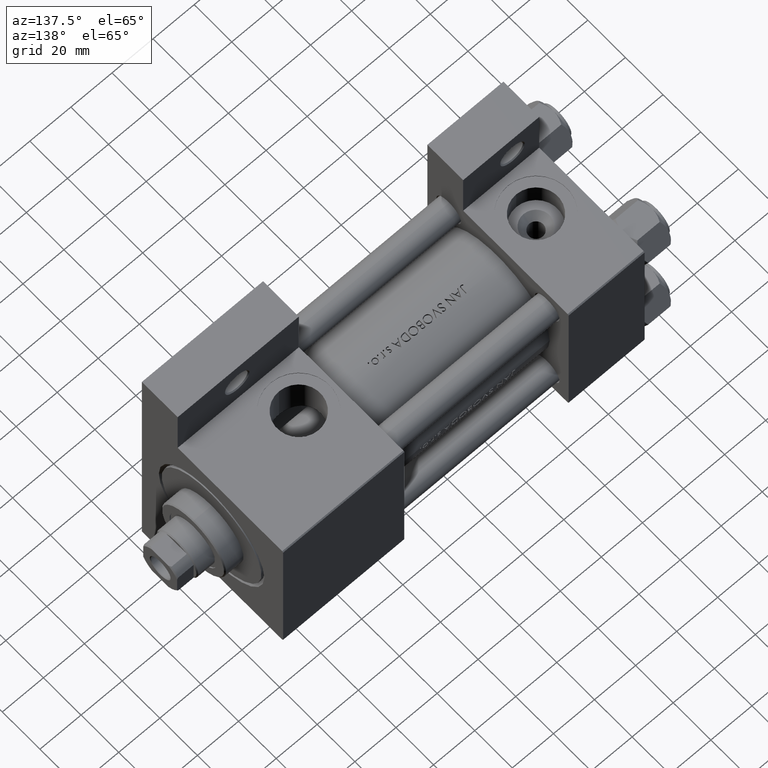
[diagram: clean part render]
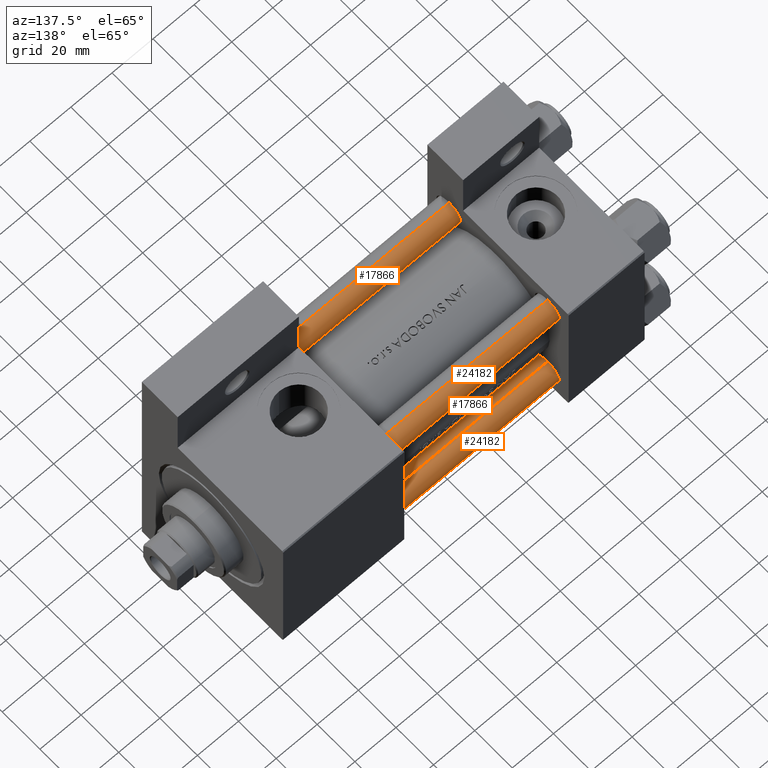
[diagram: same view with one multi-face feature highlighted, each face labeled with its STEP entity id]
A machine part, auxiliary view. The highlighted faces form ONE feature: a constant-radius fillet chain: 4 tangent blend faces with common blend radius 6 mm. The faces share edges in the B-rep.
Their STEP definitions:
[1] entity #24182 (Cylinder):
#549 = VERTEX_POINT ( 'NONE', #41938 ) ;
#715 = LINE ( 'NONE', #15894, #38499 ) ;
#1908 = EDGE_CURVE ( 'NONE', #37198, #24847, #41477, .T. ) ;
#3185 = FACE_OUTER_BOUND ( 'NONE', #3652, .T. ) ;
#3652 = EDGE_LOOP ( 'NONE', ( #24383, #47965, #26215, #38296 ) ) ;
#5524 = CIRCLE ( 'NONE', #21423, 6.000000000000000888 ) ;
#5978 = DIRECTION ( 'NONE',  ( 1.000000000000000000, 0.000000000000000000, 0.000000000000000000 ) ) ;
#6910 = VECTOR ( 'NONE', #15336, 1000.000000000000000 ) ;
#9476 = AXIS2_PLACEMENT_3D ( 'NONE', #18613, #49028, #22592 ) ;
#10208 = CARTESIAN_POINT ( 'NONE',  ( 0.000000000000000000, 0.000000000000000000, 0.5000000000000004441 ) ) ;
#11625 = DIRECTION ( 'NONE',  ( 0.000000000000000000, 0.000000000000000000, -1.000000000000000000 ) ) ;
#12683 = EDGE_CURVE ( 'NONE', #549, #24847, #715, .T. ) ;
#14192 = DIRECTION ( 'NONE',  ( -0.000000000000000000, -0.000000000000000000, 1.000000000000000000 ) ) ;
#15336 = DIRECTION ( 'NONE',  ( -0.000000000000000000, -0.000000000000000000, -1.000000000000000000 ) ) ;
#15894 = CARTESIAN_POINT ( 'NONE',  ( -6.000000000000000888, 0.000000000000000000, 146.0000000000000000 ) ) ;
#17559 = VERTEX_POINT ( 'NONE', #20754 ) ;
#17914 = CARTESIAN_POINT ( 'NONE',  ( 6.000000000000000888, 7.347880794884120722E-16, 146.0000000000000000 ) ) ;
#18613 = CARTESIAN_POINT ( 'NONE',  ( 0.000000000000000000, 0.000000000000000000, 146.0000000000000000 ) ) ;
#18859 = CYLINDRICAL_SURFACE ( 'NONE', #9476, 6.000000000000000888 ) ;
#20754 = CARTESIAN_POINT ( 'NONE',  ( 6.000000000000000888, 7.347880794884120722E-16, 145.5000000000000000 ) ) ;
#21423 = AXIS2_PLACEMENT_3D ( 'NONE', #38777, #11625, #46261 ) ;
#22592 = DIRECTION ( 'NONE',  ( -1.000000000000000000, 0.000000000000000000, 0.000000000000000000 ) ) ;
#24182 = ADVANCED_FACE ( 'NONE', ( #3185 ), #18859, .T. ) ;
#24383 = ORIENTED_EDGE ( 'NONE', *, *, #43621, .T. ) ;
#24847 = VERTEX_POINT ( 'NONE', #28099 ) ;
#26215 = ORIENTED_EDGE ( 'NONE', *, *, #1908, .T. ) ;
#28099 = CARTESIAN_POINT ( 'NONE',  ( -6.000000000000000888, 0.000000000000000000, 0.5000000000000004441 ) ) ;
#32873 = EDGE_CURVE ( 'NONE', #17559, #37198, #41091, .T. ) ;
#33971 = CARTESIAN_POINT ( 'NONE',  ( 6.000000000000000888, 7.347880794884120722E-16, 0.5000000000000004441 ) ) ;
#37198 = VERTEX_POINT ( 'NONE', #33971 ) ;
#38296 = ORIENTED_EDGE ( 'NONE', *, *, #12683, .F. ) ;
#38499 = VECTOR ( 'NONE', #39534, 1000.000000000000000 ) ;
#38777 = CARTESIAN_POINT ( 'NONE',  ( 0.000000000000000000, 0.000000000000000000, 145.5000000000000000 ) ) ;
#39534 = DIRECTION ( 'NONE',  ( -0.000000000000000000, -0.000000000000000000, -1.000000000000000000 ) ) ;
#41091 = LINE ( 'NONE', #17914, #6910 ) ;
#41477 = CIRCLE ( 'NONE', #47825, 6.000000000000000888 ) ;
#41938 = CARTESIAN_POINT ( 'NONE',  ( -6.000000000000000888, 0.000000000000000000, 145.5000000000000000 ) ) ;
#43621 = EDGE_CURVE ( 'NONE', #549, #17559, #5524, .T. ) ;
#46261 = DIRECTION ( 'NONE',  ( 1.000000000000000000, 0.000000000000000000, 0.000000000000000000 ) ) ;
#47825 = AXIS2_PLACEMENT_3D ( 'NONE', #10208, #14192, #5978 ) ;
#47965 = ORIENTED_EDGE ( 'NONE', *, *, #32873, .T. ) ;
#49028 = DIRECTION ( 'NONE',  ( -0.000000000000000000, -0.000000000000000000, -1.000000000000000000 ) ) ;
[2] entity #17866 (Cylinder):
#549 = VERTEX_POINT ( 'NONE', #41938 ) ;
#715 = LINE ( 'NONE', #15894, #38499 ) ;
#1174 = EDGE_CURVE ( 'NONE', #17559, #549, #19973, .T. ) ;
#3059 = ORIENTED_EDGE ( 'NONE', *, *, #32873, .F. ) ;
#5702 = CARTESIAN_POINT ( 'NONE',  ( 0.000000000000000000, 0.000000000000000000, 0.5000000000000004441 ) ) ;
#6206 = DIRECTION ( 'NONE',  ( 1.000000000000000000, 0.000000000000000000, 0.000000000000000000 ) ) ;
#6910 = VECTOR ( 'NONE', #15336, 1000.000000000000000 ) ;
#8622 = DIRECTION ( 'NONE',  ( 0.000000000000000000, 0.000000000000000000, -1.000000000000000000 ) ) ;
#9627 = AXIS2_PLACEMENT_3D ( 'NONE', #42490, #8622, #23550 ) ;
#12683 = EDGE_CURVE ( 'NONE', #549, #24847, #715, .T. ) ;
#13085 = ORIENTED_EDGE ( 'NONE', *, *, #12683, .T. ) ;
#15336 = DIRECTION ( 'NONE',  ( -0.000000000000000000, -0.000000000000000000, -1.000000000000000000 ) ) ;
#15894 = CARTESIAN_POINT ( 'NONE',  ( -6.000000000000000888, 0.000000000000000000, 146.0000000000000000 ) ) ;
#16490 = FACE_OUTER_BOUND ( 'NONE', #41341, .T. ) ;
#17559 = VERTEX_POINT ( 'NONE', #20754 ) ;
#17866 = ADVANCED_FACE ( 'NONE', ( #16490 ), #26986, .T. ) ;
#17914 = CARTESIAN_POINT ( 'NONE',  ( 6.000000000000000888, 7.347880794884120722E-16, 146.0000000000000000 ) ) ;
#19973 = CIRCLE ( 'NONE', #9627, 6.000000000000000888 ) ;
#20754 = CARTESIAN_POINT ( 'NONE',  ( 6.000000000000000888, 7.347880794884120722E-16, 145.5000000000000000 ) ) ;
#23550 = DIRECTION ( 'NONE',  ( 1.000000000000000000, 0.000000000000000000, 0.000000000000000000 ) ) ;
#24421 = CIRCLE ( 'NONE', #37163, 6.000000000000000888 ) ;
#24847 = VERTEX_POINT ( 'NONE', #28099 ) ;
#26986 = CYLINDRICAL_SURFACE ( 'NONE', #30728, 6.000000000000000888 ) ;
#27950 = CARTESIAN_POINT ( 'NONE',  ( 0.000000000000000000, 0.000000000000000000, 146.0000000000000000 ) ) ;
#28099 = CARTESIAN_POINT ( 'NONE',  ( -6.000000000000000888, 0.000000000000000000, 0.5000000000000004441 ) ) ;
#30728 = AXIS2_PLACEMENT_3D ( 'NONE', #27950, #46409, #43151 ) ;
#32873 = EDGE_CURVE ( 'NONE', #17559, #37198, #41091, .T. ) ;
#33711 = EDGE_CURVE ( 'NONE', #24847, #37198, #24421, .T. ) ;
#33971 = CARTESIAN_POINT ( 'NONE',  ( 6.000000000000000888, 7.347880794884120722E-16, 0.5000000000000004441 ) ) ;
#36094 = DIRECTION ( 'NONE',  ( -0.000000000000000000, -0.000000000000000000, 1.000000000000000000 ) ) ;
#37163 = AXIS2_PLACEMENT_3D ( 'NONE', #5702, #36094, #6206 ) ;
#37198 = VERTEX_POINT ( 'NONE', #33971 ) ;
#38499 = VECTOR ( 'NONE', #39534, 1000.000000000000000 ) ;
#39534 = DIRECTION ( 'NONE',  ( -0.000000000000000000, -0.000000000000000000, -1.000000000000000000 ) ) ;
#40459 = ORIENTED_EDGE ( 'NONE', *, *, #33711, .T. ) ;
#41091 = LINE ( 'NONE', #17914, #6910 ) ;
#41341 = EDGE_LOOP ( 'NONE', ( #3059, #48482, #13085, #40459 ) ) ;
#41938 = CARTESIAN_POINT ( 'NONE',  ( -6.000000000000000888, 0.000000000000000000, 145.5000000000000000 ) ) ;
#42490 = CARTESIAN_POINT ( 'NONE',  ( 0.000000000000000000, 0.000000000000000000, 145.5000000000000000 ) ) ;
#43151 = DIRECTION ( 'NONE',  ( -1.000000000000000000, 0.000000000000000000, 0.000000000000000000 ) ) ;
#46409 = DIRECTION ( 'NONE',  ( -0.000000000000000000, -0.000000000000000000, -1.000000000000000000 ) ) ;
#48482 = ORIENTED_EDGE ( 'NONE', *, *, #1174, .T. ) ;
[3] entity #24182 (Cylinder):
#549 = VERTEX_POINT ( 'NONE', #41938 ) ;
#715 = LINE ( 'NONE', #15894, #38499 ) ;
#1908 = EDGE_CURVE ( 'NONE', #37198, #24847, #41477, .T. ) ;
#3185 = FACE_OUTER_BOUND ( 'NONE', #3652, .T. ) ;
#3652 = EDGE_LOOP ( 'NONE', ( #24383, #47965, #26215, #38296 ) ) ;
#5524 = CIRCLE ( 'NONE', #21423, 6.000000000000000888 ) ;
#5978 = DIRECTION ( 'NONE',  ( 1.000000000000000000, 0.000000000000000000, 0.000000000000000000 ) ) ;
#6910 = VECTOR ( 'NONE', #15336, 1000.000000000000000 ) ;
#9476 = AXIS2_PLACEMENT_3D ( 'NONE', #18613, #49028, #22592 ) ;
#10208 = CARTESIAN_POINT ( 'NONE',  ( 0.000000000000000000, 0.000000000000000000, 0.5000000000000004441 ) ) ;
#11625 = DIRECTION ( 'NONE',  ( 0.000000000000000000, 0.000000000000000000, -1.000000000000000000 ) ) ;
#12683 = EDGE_CURVE ( 'NONE', #549, #24847, #715, .T. ) ;
#14192 = DIRECTION ( 'NONE',  ( -0.000000000000000000, -0.000000000000000000, 1.000000000000000000 ) ) ;
#15336 = DIRECTION ( 'NONE',  ( -0.000000000000000000, -0.000000000000000000, -1.000000000000000000 ) ) ;
#15894 = CARTESIAN_POINT ( 'NONE',  ( -6.000000000000000888, 0.000000000000000000, 146.0000000000000000 ) ) ;
#17559 = VERTEX_POINT ( 'NONE', #20754 ) ;
#17914 = CARTESIAN_POINT ( 'NONE',  ( 6.000000000000000888, 7.347880794884120722E-16, 146.0000000000000000 ) ) ;
#18613 = CARTESIAN_POINT ( 'NONE',  ( 0.000000000000000000, 0.000000000000000000, 146.0000000000000000 ) ) ;
#18859 = CYLINDRICAL_SURFACE ( 'NONE', #9476, 6.000000000000000888 ) ;
#20754 = CARTESIAN_POINT ( 'NONE',  ( 6.000000000000000888, 7.347880794884120722E-16, 145.5000000000000000 ) ) ;
#21423 = AXIS2_PLACEMENT_3D ( 'NONE', #38777, #11625, #46261 ) ;
#22592 = DIRECTION ( 'NONE',  ( -1.000000000000000000, 0.000000000000000000, 0.000000000000000000 ) ) ;
#24182 = ADVANCED_FACE ( 'NONE', ( #3185 ), #18859, .T. ) ;
#24383 = ORIENTED_EDGE ( 'NONE', *, *, #43621, .T. ) ;
#24847 = VERTEX_POINT ( 'NONE', #28099 ) ;
#26215 = ORIENTED_EDGE ( 'NONE', *, *, #1908, .T. ) ;
#28099 = CARTESIAN_POINT ( 'NONE',  ( -6.000000000000000888, 0.000000000000000000, 0.5000000000000004441 ) ) ;
#32873 = EDGE_CURVE ( 'NONE', #17559, #37198, #41091, .T. ) ;
#33971 = CARTESIAN_POINT ( 'NONE',  ( 6.000000000000000888, 7.347880794884120722E-16, 0.5000000000000004441 ) ) ;
#37198 = VERTEX_POINT ( 'NONE', #33971 ) ;
#38296 = ORIENTED_EDGE ( 'NONE', *, *, #12683, .F. ) ;
#38499 = VECTOR ( 'NONE', #39534, 1000.000000000000000 ) ;
#38777 = CARTESIAN_POINT ( 'NONE',  ( 0.000000000000000000, 0.000000000000000000, 145.5000000000000000 ) ) ;
#39534 = DIRECTION ( 'NONE',  ( -0.000000000000000000, -0.000000000000000000, -1.000000000000000000 ) ) ;
#41091 = LINE ( 'NONE', #17914, #6910 ) ;
#41477 = CIRCLE ( 'NONE', #47825, 6.000000000000000888 ) ;
#41938 = CARTESIAN_POINT ( 'NONE',  ( -6.000000000000000888, 0.000000000000000000, 145.5000000000000000 ) ) ;
#43621 = EDGE_CURVE ( 'NONE', #549, #17559, #5524, .T. ) ;
#46261 = DIRECTION ( 'NONE',  ( 1.000000000000000000, 0.000000000000000000, 0.000000000000000000 ) ) ;
#47825 = AXIS2_PLACEMENT_3D ( 'NONE', #10208, #14192, #5978 ) ;
#47965 = ORIENTED_EDGE ( 'NONE', *, *, #32873, .T. ) ;
#49028 = DIRECTION ( 'NONE',  ( -0.000000000000000000, -0.000000000000000000, -1.000000000000000000 ) ) ;
[4] entity #17866 (Cylinder):
#549 = VERTEX_POINT ( 'NONE', #41938 ) ;
#715 = LINE ( 'NONE', #15894, #38499 ) ;
#1174 = EDGE_CURVE ( 'NONE', #17559, #549, #19973, .T. ) ;
#3059 = ORIENTED_EDGE ( 'NONE', *, *, #32873, .F. ) ;
#5702 = CARTESIAN_POINT ( 'NONE',  ( 0.000000000000000000, 0.000000000000000000, 0.5000000000000004441 ) ) ;
#6206 = DIRECTION ( 'NONE',  ( 1.000000000000000000, 0.000000000000000000, 0.000000000000000000 ) ) ;
#6910 = VECTOR ( 'NONE', #15336, 1000.000000000000000 ) ;
#8622 = DIRECTION ( 'NONE',  ( 0.000000000000000000, 0.000000000000000000, -1.000000000000000000 ) ) ;
#9627 = AXIS2_PLACEMENT_3D ( 'NONE', #42490, #8622, #23550 ) ;
#12683 = EDGE_CURVE ( 'NONE', #549, #24847, #715, .T. ) ;
#13085 = ORIENTED_EDGE ( 'NONE', *, *, #12683, .T. ) ;
#15336 = DIRECTION ( 'NONE',  ( -0.000000000000000000, -0.000000000000000000, -1.000000000000000000 ) ) ;
#15894 = CARTESIAN_POINT ( 'NONE',  ( -6.000000000000000888, 0.000000000000000000, 146.0000000000000000 ) ) ;
#16490 = FACE_OUTER_BOUND ( 'NONE', #41341, .T. ) ;
#17559 = VERTEX_POINT ( 'NONE', #20754 ) ;
#17866 = ADVANCED_FACE ( 'NONE', ( #16490 ), #26986, .T. ) ;
#17914 = CARTESIAN_POINT ( 'NONE',  ( 6.000000000000000888, 7.347880794884120722E-16, 146.0000000000000000 ) ) ;
#19973 = CIRCLE ( 'NONE', #9627, 6.000000000000000888 ) ;
#20754 = CARTESIAN_POINT ( 'NONE',  ( 6.000000000000000888, 7.347880794884120722E-16, 145.5000000000000000 ) ) ;
#23550 = DIRECTION ( 'NONE',  ( 1.000000000000000000, 0.000000000000000000, 0.000000000000000000 ) ) ;
#24421 = CIRCLE ( 'NONE', #37163, 6.000000000000000888 ) ;
#24847 = VERTEX_POINT ( 'NONE', #28099 ) ;
#26986 = CYLINDRICAL_SURFACE ( 'NONE', #30728, 6.000000000000000888 ) ;
#27950 = CARTESIAN_POINT ( 'NONE',  ( 0.000000000000000000, 0.000000000000000000, 146.0000000000000000 ) ) ;
#28099 = CARTESIAN_POINT ( 'NONE',  ( -6.000000000000000888, 0.000000000000000000, 0.5000000000000004441 ) ) ;
#30728 = AXIS2_PLACEMENT_3D ( 'NONE', #27950, #46409, #43151 ) ;
#32873 = EDGE_CURVE ( 'NONE', #17559, #37198, #41091, .T. ) ;
#33711 = EDGE_CURVE ( 'NONE', #24847, #37198, #24421, .T. ) ;
#33971 = CARTESIAN_POINT ( 'NONE',  ( 6.000000000000000888, 7.347880794884120722E-16, 0.5000000000000004441 ) ) ;
#36094 = DIRECTION ( 'NONE',  ( -0.000000000000000000, -0.000000000000000000, 1.000000000000000000 ) ) ;
#37163 = AXIS2_PLACEMENT_3D ( 'NONE', #5702, #36094, #6206 ) ;
#37198 = VERTEX_POINT ( 'NONE', #33971 ) ;
#38499 = VECTOR ( 'NONE', #39534, 1000.000000000000000 ) ;
#39534 = DIRECTION ( 'NONE',  ( -0.000000000000000000, -0.000000000000000000, -1.000000000000000000 ) ) ;
#40459 = ORIENTED_EDGE ( 'NONE', *, *, #33711, .T. ) ;
#41091 = LINE ( 'NONE', #17914, #6910 ) ;
#41341 = EDGE_LOOP ( 'NONE', ( #3059, #48482, #13085, #40459 ) ) ;
#41938 = CARTESIAN_POINT ( 'NONE',  ( -6.000000000000000888, 0.000000000000000000, 145.5000000000000000 ) ) ;
#42490 = CARTESIAN_POINT ( 'NONE',  ( 0.000000000000000000, 0.000000000000000000, 145.5000000000000000 ) ) ;
#43151 = DIRECTION ( 'NONE',  ( -1.000000000000000000, 0.000000000000000000, 0.000000000000000000 ) ) ;
#46409 = DIRECTION ( 'NONE',  ( -0.000000000000000000, -0.000000000000000000, -1.000000000000000000 ) ) ;
#48482 = ORIENTED_EDGE ( 'NONE', *, *, #1174, .T. ) ;